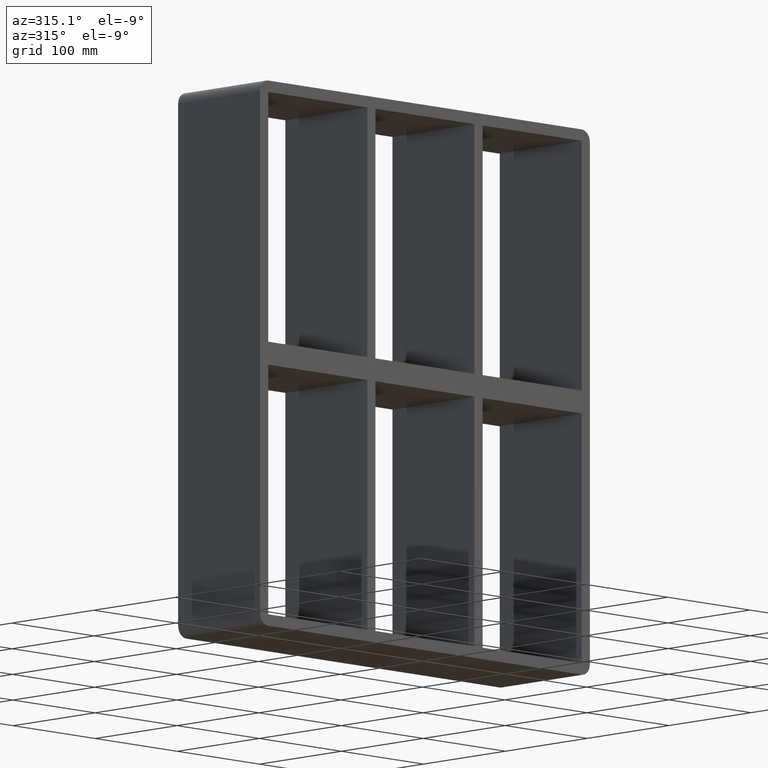
[diagram: clean part render]
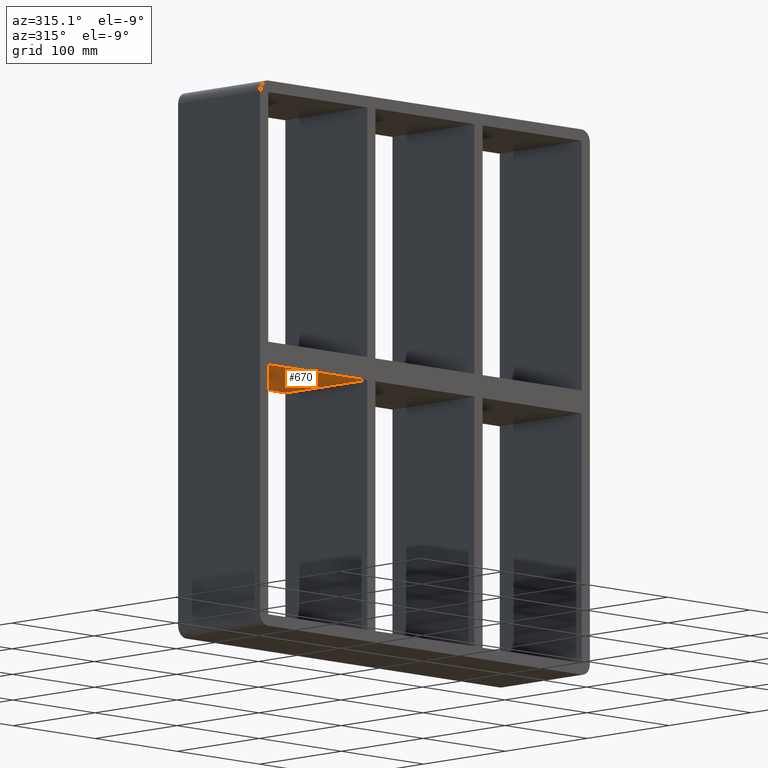
[diagram: same view with one face highlighted and labeled with its STEP entity id]
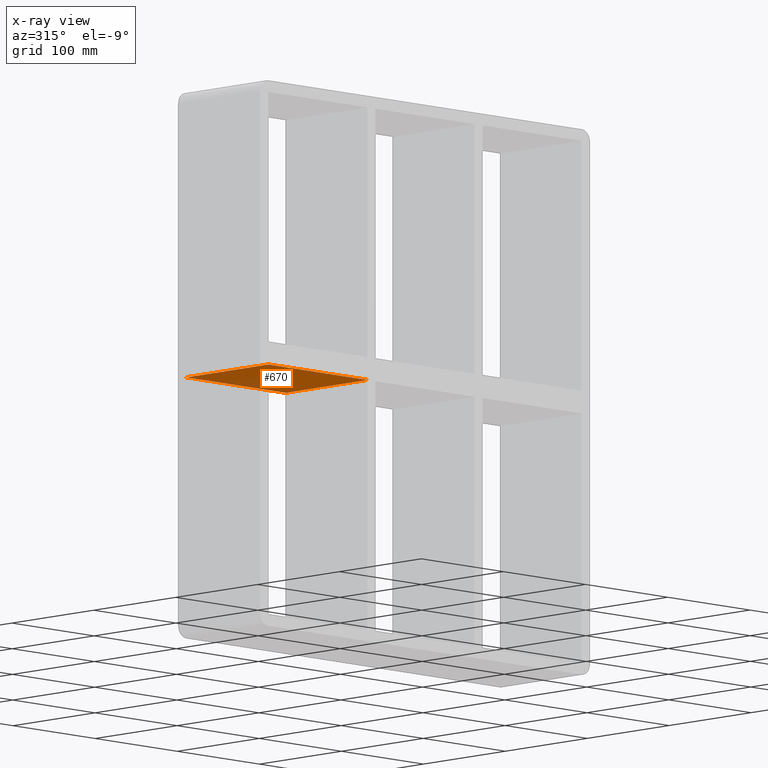
[diagram: x-ray of the same camera — body ghosted, the highlighted face saturated]
A machine part, auxiliary view. The second image highlights one B-rep face of the part: STEP entity #670.
The next image is the same camera in x-ray: the body ghosted, the highlighted face saturated — about 14% of this face is hidden behind the body in this view.
In plain terms, the highlighted planar face has unit normal (0, 0, -1).
Its self-contained STEP definition (entity closure, byte-faithful):
#451=CARTESIAN_POINT('',(-70.250000000001265,-3.0,-10.000000000015589));
#452=VERTEX_POINT('',#451);
#453=CARTESIAN_POINT('',(-190.74999999999974,-3.0,-10.000000000015632));
#454=VERTEX_POINT('',#453);
#455=CARTESIAN_POINT('',(-70.250000000001251,-3.0,-10.000000000015589));
#456=DIRECTION('',(-1.0,0.0,0.0));
#457=VECTOR('',#456,120.49999999999852);
#458=LINE('',#455,#457);
#459=EDGE_CURVE('',#452,#454,#458,.T.);
#640=CARTESIAN_POINT('',(190.75000000000728,-3.0,-10.000000000015499));
#641=DIRECTION('',(0.0,0.0,-1.0));
#642=DIRECTION('',(-1.0,0.0,0.0));
#643=AXIS2_PLACEMENT_3D('',#640,#641,#642);
#644=PLANE('',#643);
#645=CARTESIAN_POINT('',(-70.250000000001265,97.0,-10.000000000015589));
#646=VERTEX_POINT('',#645);
#647=CARTESIAN_POINT('',(-70.250000000001265,-3.0,-10.000000000015589));
#648=DIRECTION('',(0.0,1.0,0.0));
#649=VECTOR('',#648,100.0);
#650=LINE('',#647,#649);
#651=EDGE_CURVE('',#452,#646,#650,.T.);
#652=ORIENTED_EDGE('',*,*,#651,.F.);
#653=ORIENTED_EDGE('',*,*,#459,.T.);
#654=CARTESIAN_POINT('',(-190.74999999999974,97.0,-10.000000000015632));
#655=VERTEX_POINT('',#654);
#656=CARTESIAN_POINT('',(-190.75000000000003,97.0,-10.000000000015628));
#657=DIRECTION('',(0.0,-1.0,0.0));
#658=VECTOR('',#657,100.0);
#659=LINE('',#656,#658);
#660=EDGE_CURVE('',#655,#454,#659,.T.);
#661=ORIENTED_EDGE('',*,*,#660,.F.);
#662=CARTESIAN_POINT('',(-70.250000000001251,97.0,-10.000000000015589));
#663=DIRECTION('',(-1.0,0.0,0.0));
#664=VECTOR('',#663,120.49999999999852);
#665=LINE('',#662,#664);
#666=EDGE_CURVE('',#646,#655,#665,.T.);
#667=ORIENTED_EDGE('',*,*,#666,.F.);
#668=EDGE_LOOP('',(#652,#653,#661,#667));
#669=FACE_OUTER_BOUND('',#668,.T.);
#670=ADVANCED_FACE('',(#669),#644,.T.);